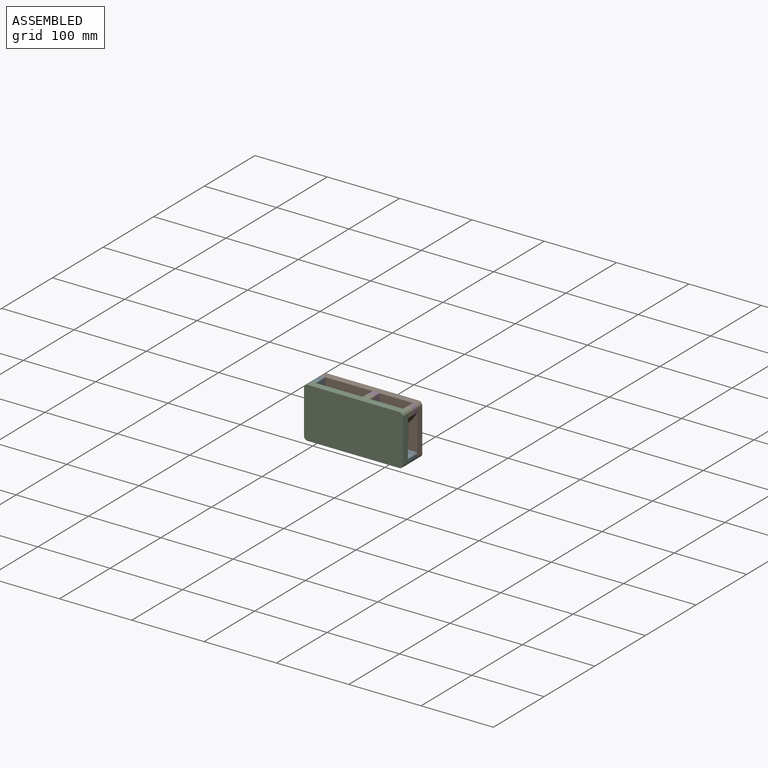
[diagram: assembled view]
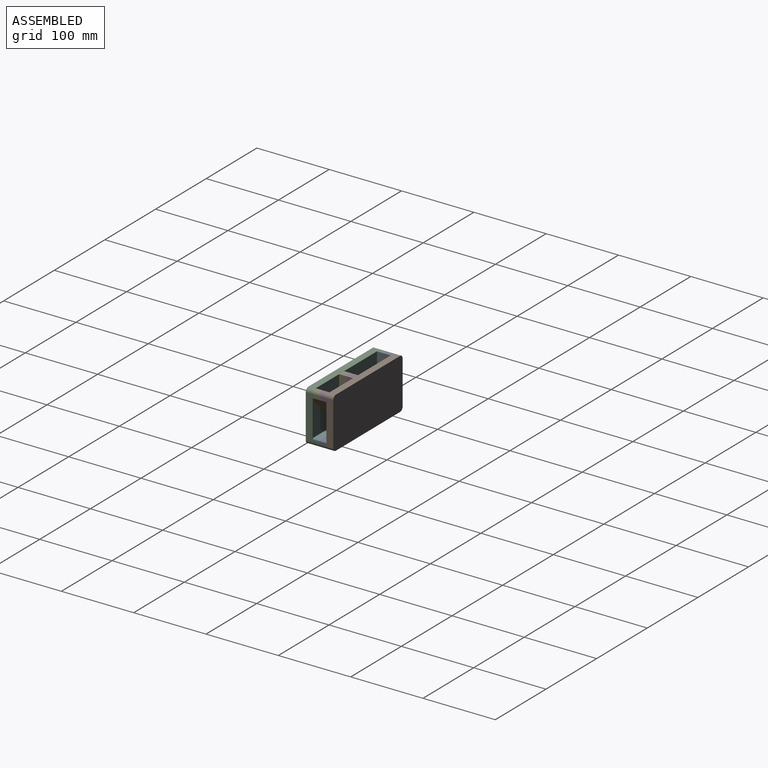
[diagram: assembled view, second angle]
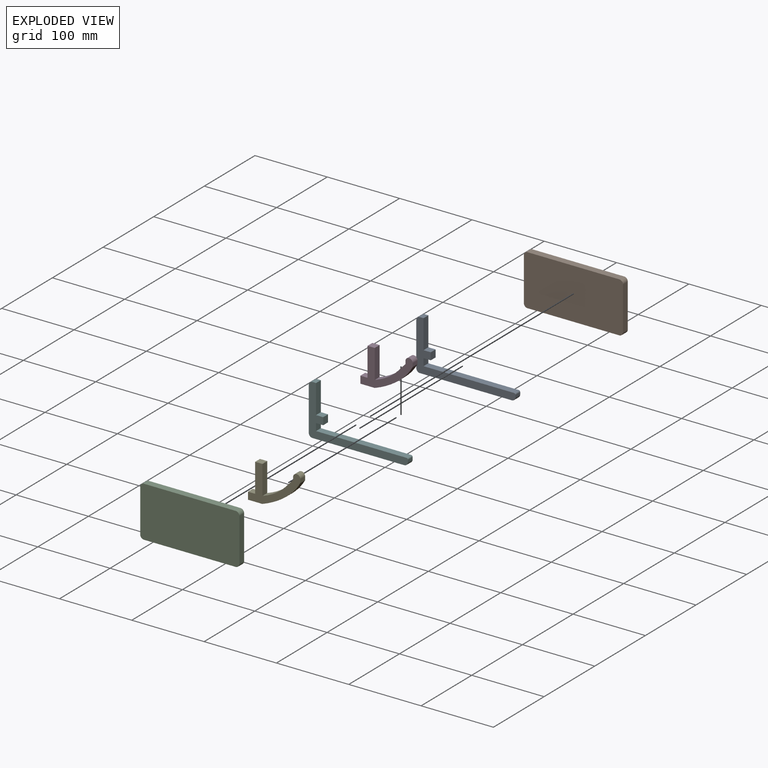
[diagram: exploded view]
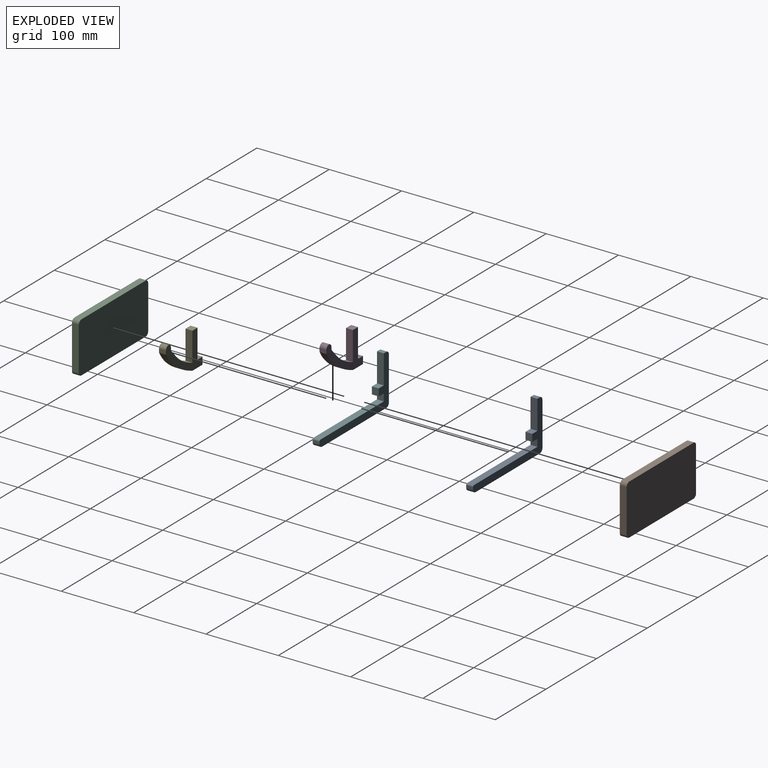
[diagram: exploded view, second angle]
ASSEMBLY  parts=6 mates=5
PART A: 16 faces, bbox 137x9.5x70 mm
  f0: plane 10x9.5mm, normal (1,0,0), area 95mm2, adj f1,f9,f10,f11
  f1: plane 10x9.5mm, normal (0,0,-1), area 95mm2, adj f0,f2,f10,f11
  f2: plane 10x9.5mm, normal (1,0,0), area 95mm2, adj f1,f3,f10,f11
  f3: plane 10x9.5mm, normal (0,0,1), area 95mm2, adj f2,f4,f10,f11
  f4: plane 40x9.5mm, normal (1,0,0), area 380mm2, adj f3,f5,f10,f11
  f5: plane 9.5x5mm, normal (0,0,1), area 47.5mm2, adj f4,f10,f11,f12
  f6: plane 60x9.5mm, normal (-1,0,0), area 570mm2, adj f10,f11,f12,f13
  f7: plane 127x9.5mm, normal (0,0,-1), area 1206.5mm2, adj f10,f11,f13,f14
  f8: plane 9.5x3mm, normal (1,0,0), area 28.5mm2, adj f10,f11,f14,f15
  f9: plane 125x9.5mm, normal (0,0,1), area 1187.5mm2, adj f0,f10,f11,f15
  f10: plane 137x70mm, normal (0,-1,0), area 2053mm2, adj f0,f1,f2,f3,f4,f5,f6,f7
  f11: plane 137x70mm, normal (0,1,0), area 2053mm2, adj f0,f1,f2,f3,f4,f5,f6,f7
  f12: cylinder r=5mm len=9.5mm, axis (0,1,0), area 74.6mm2, adj f5,f6,f10,f11
  f13: cylinder r=5mm len=9.5mm, axis (0,-1,0), area 74.6mm2, adj f6,f7,f10,f11
  f14: cylinder r=5mm len=9.5mm, axis (0,-1,0), area 74.6mm2, adj f7,f8,f10,f11
  f15: cylinder r=2mm len=9.5mm, axis (0,1,0), area 29.8mm2, adj f8,f9,f10,f11
PART B: 10 faces, bbox 137x9.5x70 mm
  f0: plane 127x9.5mm, normal (0,0,-1), area 1206.5mm2, adj f4,f5,f6,f9
  f1: plane 60x9.5mm, normal (1,0,0), area 570mm2, adj f4,f5,f6,f7
  f2: plane 127x9.5mm, normal (0,0,1), area 1206.5mm2, adj f4,f5,f7,f8
  f3: plane 60x9.5mm, normal (-1,0,0), area 570mm2, adj f4,f5,f8,f9
  f4: plane 137x70mm, normal (0,-1,0), area 9568.5mm2, adj f0,f1,f2,f3,f6,f7,f8,f9
  f5: plane 137x70mm, normal (0,1,0), area 9568.5mm2, adj f0,f1,f2,f3,f6,f7,f8,f9
  f6: cylinder r=5mm len=9.5mm, axis (0,-1,0), area 74.6mm2, adj f0,f1,f4,f5
  f7: cylinder r=5mm len=9.5mm, axis (0,1,0), area 74.6mm2, adj f1,f2,f4,f5
  f8: cylinder r=5mm len=9.5mm, axis (0,-1,0), area 74.6mm2, adj f2,f3,f4,f5
  f9: cylinder r=5mm len=9.5mm, axis (0,1,0), area 74.6mm2, adj f0,f3,f4,f5
PART C: same geometry as B
PART D: 14 faces, bbox 72.4x9.5x50 mm
  f0: plane 20x9.5mm, normal (0,0,-1), area 190mm2, adj f1,f10,f11,f12
  f1: extruded ~52.3x40mm, area 639mm2, adj f0,f2,f11,f12
  f2: plane 9.5x0.09mm, normal (0,0,-1), area 0.9mm2, adj f1,f3,f11,f12
  f3: plane 9.5x5mm, normal (1,0,0), area 47.5mm2, adj f2,f11,f12,f13
  f4: plane 9.5x3.71mm, normal (-1,0,0), area 35.2mm2, adj f5,f11,f12,f13
  f5: extruded ~42.39x31.29mm, area 508.1mm2, adj f4,f6,f11,f12
  f6: plane 40x9.5mm, normal (1,0,0), area 380mm2, adj f5,f7,f11,f12
  f7: plane 10x9.5mm, normal (0,0,1), area 95mm2, adj f6,f8,f11,f12
  f8: plane 40x9.5mm, normal (-1,0,0), area 380mm2, adj f7,f9,f11,f12
  f9: plane 10x9.5mm, normal (0,0,1), area 95mm2, adj f8,f10,f11,f12
  f10: plane 10x9.5mm, normal (-1,0,0), area 95mm2, adj f0,f9,f11,f12
  f11: plane 72.39x50mm, normal (0,-1,0), area 1249.5mm2, adj f0,f1,f2,f3,f4,f5,f6,f7
  f12: plane 72.39x50mm, normal (0,1,0), area 1249.5mm2, adj f0,f1,f2,f3,f4,f5,f6,f7
  f13: cylinder r=5mm len=10mm, axis (0,-1,0), area 149.2mm2, adj f3,f4,f11,f12
PART E: same geometry as D
PART F: same geometry as A
PLACE A t=(-141.3,132.08,47.3)mm
PLACE B t=(-146.03,141.58,28.81)mm
PLACE C t=(-146.03,113.08,28.81)mm
PLACE D t=(-105.42,132.08,35.65)mm
PLACE E t=(-105.42,122.58,35.65)mm
PLACE F t=(-141.3,122.58,47.3)mm
MATE fastened B.f4 <-> A.f11  axis (0,-1,0) through (-214.53,132.08,28.81)mm
MATE fastened C.f6 <-> F.f14  axis (0,-1,0) through (-82.53,113.08,-1.19)mm
MATE fastened E.f13 <-> D.f13  axis (0,1,0) through (-82.53,122.58,58.81)mm
MATE fastened D.f12 <-> B.f4  axis (0,1,0) through (-82.53,132.08,63.81)mm
MATE fastened C.f5 <-> E.f11  axis (0,1,0) through (-82.53,113.08,63.81)mm
